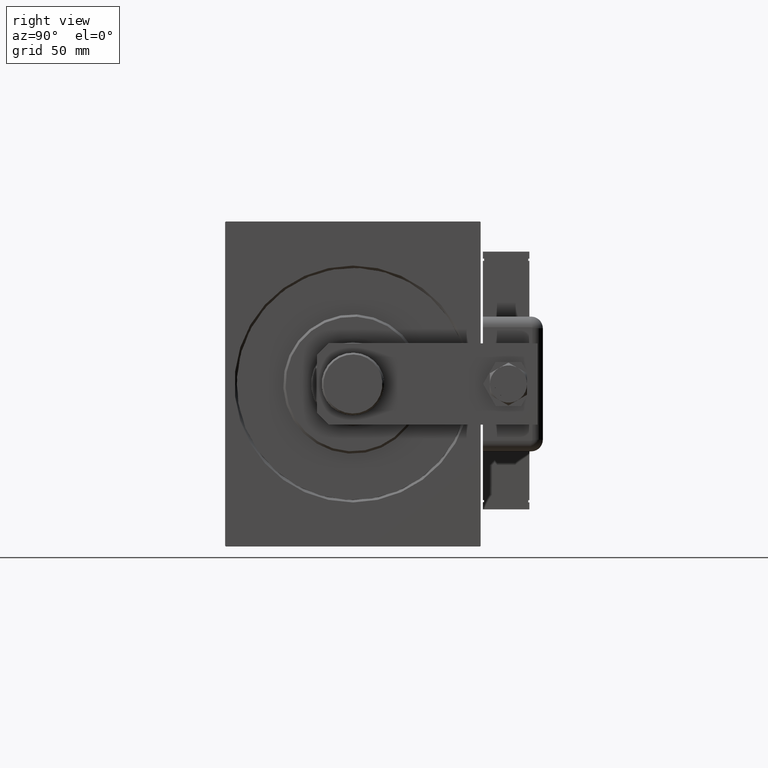
[diagram: clean part render]
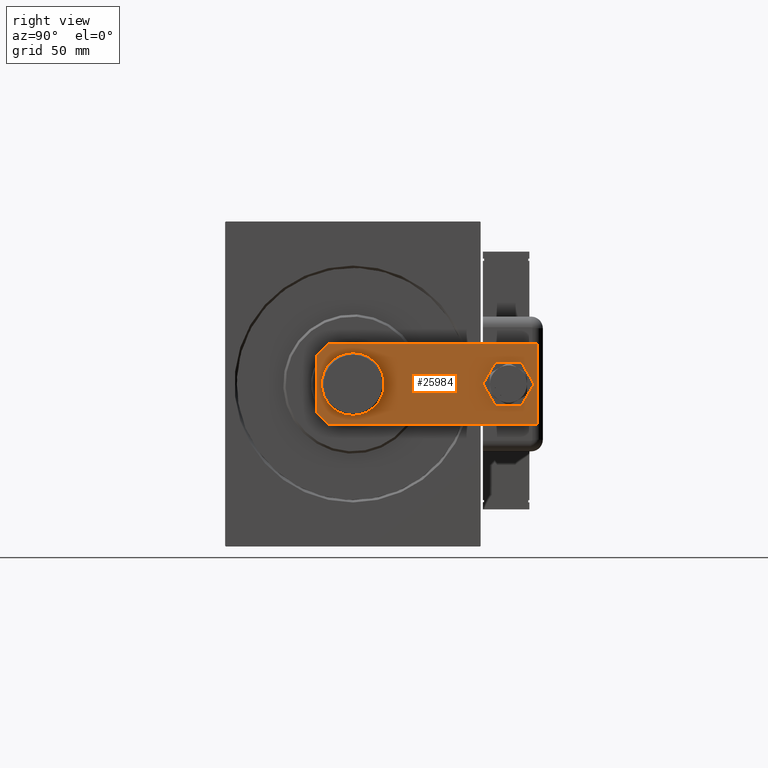
[diagram: same view with one face highlighted and labeled with its STEP entity id]
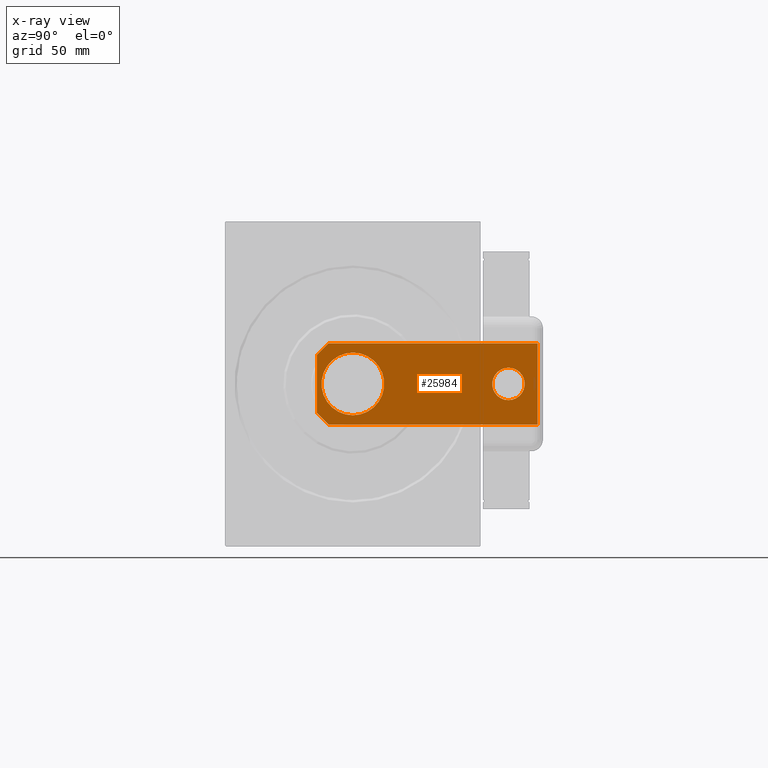
[diagram: x-ray of the same camera — body ghosted, the highlighted face saturated]
A machine part, right view. The second image highlights one B-rep face of the part: STEP entity #25984.
The next image is the same camera in x-ray: the body ghosted, the highlighted face saturated — about 0% of this face is hidden behind the body in this view.
In plain terms, the highlighted planar face has unit normal (-1, 0, 0).
Its self-contained STEP definition (entity closure, byte-faithful):
#1183 = CIRCLE ( 'NONE', #35119, 13.50000000000000000 ) ;
#2157 = EDGE_CURVE ( 'NONE', #43307, #27145, #1183, .T. ) ;
#3215 = FACE_OUTER_BOUND ( 'NONE', #56486, .T. ) ;
#4324 = AXIS2_PLACEMENT_3D ( 'NONE', #37259, #9063, #46063 ) ;
#4636 = ORIENTED_EDGE ( 'NONE', *, *, #30446, .F. ) ;
#5170 = CARTESIAN_POINT ( 'NONE',  ( 0.000000000000000000, 15.50000000000000355, 0.000000000000000000 ) ) ;
#6544 = LINE ( 'NONE', #56908, #17622 ) ;
#7006 = CARTESIAN_POINT ( 'NONE',  ( -12.50000000000000711, 9.629649721936179265E-32, 0.000000000000000000 ) ) ;
#7991 = CARTESIAN_POINT ( 'NONE',  ( -17.50000000000000355, 95.00000000000000000, 0.000000000000000000 ) ) ;
#8673 = CARTESIAN_POINT ( 'NONE',  ( -17.50000000000001066, 5.000000000000018652, 0.000000000000000000 ) ) ;
#8757 = LINE ( 'NONE', #45762, #24521 ) ;
#9063 = DIRECTION ( 'NONE',  ( 0.000000000000000000, 0.000000000000000000, 1.000000000000000000 ) ) ;
#10146 = CARTESIAN_POINT ( 'NONE',  ( -13.50000000000000000, 15.50000000000000355, 0.000000000000000000 ) ) ;
#12456 = DIRECTION ( 'NONE',  ( -0.7071067811865465735, 0.7071067811865485719, -0.000000000000000000 ) ) ;
#15740 = CARTESIAN_POINT ( 'NONE',  ( -17.50000000000001066, 9.629649721936179265E-32, 0.000000000000000000 ) ) ;
#16085 = VECTOR ( 'NONE', #34988, 1000.000000000000000 ) ;
#17086 = EDGE_CURVE ( 'NONE', #43807, #52253, #6544, .T. ) ;
#17461 = CARTESIAN_POINT ( 'NONE',  ( 0.000000000000000000, 0.000000000000000000, 0.000000000000000000 ) ) ;
#17622 = VECTOR ( 'NONE', #37805, 1000.000000000000000 ) ;
#18060 = DIRECTION ( 'NONE',  ( -0.000000000000000000, 0.000000000000000000, 1.000000000000000000 ) ) ;
#18533 = DIRECTION ( 'NONE',  ( -0.7071067811865485719, -0.7071067811865465735, -0.000000000000000000 ) ) ;
#18848 = EDGE_CURVE ( 'NONE', #52253, #32917, #8757, .T. ) ;
#21661 = ORIENTED_EDGE ( 'NONE', *, *, #37443, .T. ) ;
#21718 = FACE_BOUND ( 'NONE', #46420, .T. ) ;
#21755 = EDGE_CURVE ( 'NONE', #21891, #43739, #48553, .T. ) ;
#21891 = VERTEX_POINT ( 'NONE', #55211 ) ;
#22206 = LINE ( 'NONE', #40710, #35422 ) ;
#22236 = EDGE_CURVE ( 'NONE', #30871, #28930, #34301, .T. ) ;
#22764 = DIRECTION ( 'NONE',  ( 0.000000000000000000, 0.000000000000000000, 1.000000000000000000 ) ) ;
#23019 = ORIENTED_EDGE ( 'NONE', *, *, #21755, .T. ) ;
#23020 = VECTOR ( 'NONE', #33963, 1000.000000000000000 ) ;
#23962 = EDGE_CURVE ( 'NONE', #28930, #30871, #58600, .T. ) ;
#24521 = VECTOR ( 'NONE', #59729, 1000.000000000000000 ) ;
#25984 = ADVANCED_FACE ( 'NONE', ( #3215, #21718, #26884 ), #40231, .F. ) ;
#26103 = ORIENTED_EDGE ( 'NONE', *, *, #53290, .T. ) ;
#26121 = CARTESIAN_POINT ( 'NONE',  ( -7.000000000000000000, 82.50000000000000000, 0.000000000000000000 ) ) ;
#26738 = AXIS2_PLACEMENT_3D ( 'NONE', #17461, #18060, #55072 ) ;
#26884 = FACE_BOUND ( 'NONE', #45005, .T. ) ;
#27145 = VERTEX_POINT ( 'NONE', #10146 ) ;
#28340 = ORIENTED_EDGE ( 'NONE', *, *, #18848, .F. ) ;
#28524 = DIRECTION ( 'NONE',  ( 1.000000000000000000, 0.000000000000000000, 0.000000000000000000 ) ) ;
#28930 = VERTEX_POINT ( 'NONE', #34229 ) ;
#30434 = ORIENTED_EDGE ( 'NONE', *, *, #2157, .T. ) ;
#30446 = EDGE_CURVE ( 'NONE', #32917, #43739, #39846, .T. ) ;
#30850 = CARTESIAN_POINT ( 'NONE',  ( -17.50000000000000355, 95.00000000000000000, 0.000000000000000000 ) ) ;
#30871 = VERTEX_POINT ( 'NONE', #26121 ) ;
#31403 = ORIENTED_EDGE ( 'NONE', *, *, #23962, .T. ) ;
#31713 = CARTESIAN_POINT ( 'NONE',  ( 1.963948872468190046E-17, 82.50000000000000000, 0.000000000000000000 ) ) ;
#32917 = VERTEX_POINT ( 'NONE', #30850 ) ;
#33963 = DIRECTION ( 'NONE',  ( 1.000000000000000000, 0.000000000000000000, 0.000000000000000000 ) ) ;
#34229 = CARTESIAN_POINT ( 'NONE',  ( 7.000000000000000000, 82.50000000000000000, 0.000000000000000000 ) ) ;
#34301 = CIRCLE ( 'NONE', #55653, 7.000000000000000000 ) ;
#34988 = DIRECTION ( 'NONE',  ( -7.304098846218135653E-17, -1.000000000000000000, 0.000000000000000000 ) ) ;
#35119 = AXIS2_PLACEMENT_3D ( 'NONE', #52074, #22764, #36723 ) ;
#35422 = VECTOR ( 'NONE', #18533, 1000.000000000000000 ) ;
#36543 = ORIENTED_EDGE ( 'NONE', *, *, #17086, .F. ) ;
#36723 = DIRECTION ( 'NONE',  ( 1.000000000000000000, 0.000000000000000000, 0.000000000000000000 ) ) ;
#37259 = CARTESIAN_POINT ( 'NONE',  ( 1.963948872468190046E-17, 82.50000000000000000, 0.000000000000000000 ) ) ;
#37443 = EDGE_CURVE ( 'NONE', #43807, #58986, #22206, .T. ) ;
#37805 = DIRECTION ( 'NONE',  ( -1.095614826932720348E-16, 1.000000000000000000, 0.000000000000000000 ) ) ;
#39113 = LINE ( 'NONE', #15740, #23020 ) ;
#39846 = LINE ( 'NONE', #7991, #16085 ) ;
#40231 = PLANE ( 'NONE',  #26738 ) ;
#40710 = CARTESIAN_POINT ( 'NONE',  ( 17.50000000000001066, 5.000000000000004441, 0.000000000000000000 ) ) ;
#41020 = ORIENTED_EDGE ( 'NONE', *, *, #45638, .F. ) ;
#43307 = VERTEX_POINT ( 'NONE', #47297 ) ;
#43739 = VERTEX_POINT ( 'NONE', #8673 ) ;
#43807 = VERTEX_POINT ( 'NONE', #55079 ) ;
#45005 = EDGE_LOOP ( 'NONE', ( #26103, #30434 ) ) ;
#45638 = EDGE_CURVE ( 'NONE', #21891, #58986, #39113, .T. ) ;
#45762 = CARTESIAN_POINT ( 'NONE',  ( 17.50000000000000000, 95.00000000000000000, 0.000000000000000000 ) ) ;
#46063 = DIRECTION ( 'NONE',  ( 1.000000000000000000, 0.000000000000000000, 0.000000000000000000 ) ) ;
#46420 = EDGE_LOOP ( 'NONE', ( #58034, #31403 ) ) ;
#46795 = CARTESIAN_POINT ( 'NONE',  ( 12.49999999999999289, 9.629649721936179265E-32, 0.000000000000000000 ) ) ;
#47297 = CARTESIAN_POINT ( 'NONE',  ( 13.50000000000000000, 15.50000000000000533, 0.000000000000000000 ) ) ;
#48553 = LINE ( 'NONE', #7006, #50743 ) ;
#50376 = AXIS2_PLACEMENT_3D ( 'NONE', #5170, #50974, #28524 ) ;
#50743 = VECTOR ( 'NONE', #12456, 1000.000000000000000 ) ;
#50974 = DIRECTION ( 'NONE',  ( 0.000000000000000000, 0.000000000000000000, 1.000000000000000000 ) ) ;
#52074 = CARTESIAN_POINT ( 'NONE',  ( 0.000000000000000000, 15.50000000000000355, 0.000000000000000000 ) ) ;
#52253 = VERTEX_POINT ( 'NONE', #55229 ) ;
#53290 = EDGE_CURVE ( 'NONE', #27145, #43307, #57170, .T. ) ;
#55072 = DIRECTION ( 'NONE',  ( 1.000000000000000000, 0.000000000000000000, 0.000000000000000000 ) ) ;
#55079 = CARTESIAN_POINT ( 'NONE',  ( 17.50000000000001066, 5.000000000000003553, 0.000000000000000000 ) ) ;
#55211 = CARTESIAN_POINT ( 'NONE',  ( -12.50000000000000711, 9.629649721936179265E-32, 0.000000000000000000 ) ) ;
#55229 = CARTESIAN_POINT ( 'NONE',  ( 17.50000000000000000, 95.00000000000000000, 0.000000000000000000 ) ) ;
#55653 = AXIS2_PLACEMENT_3D ( 'NONE', #31713, #59031, #58732 ) ;
#56486 = EDGE_LOOP ( 'NONE', ( #41020, #23019, #4636, #28340, #36543, #21661 ) ) ;
#56908 = CARTESIAN_POINT ( 'NONE',  ( 17.50000000000001066, 9.629649721936179265E-32, 0.000000000000000000 ) ) ;
#57170 = CIRCLE ( 'NONE', #50376, 13.50000000000000000 ) ;
#58034 = ORIENTED_EDGE ( 'NONE', *, *, #22236, .T. ) ;
#58600 = CIRCLE ( 'NONE', #4324, 7.000000000000000000 ) ;
#58732 = DIRECTION ( 'NONE',  ( 1.000000000000000000, 0.000000000000000000, 0.000000000000000000 ) ) ;
#58986 = VERTEX_POINT ( 'NONE', #46795 ) ;
#59031 = DIRECTION ( 'NONE',  ( 0.000000000000000000, 0.000000000000000000, 1.000000000000000000 ) ) ;
#59729 = DIRECTION ( 'NONE',  ( -1.000000000000000000, 0.000000000000000000, 0.000000000000000000 ) ) ;